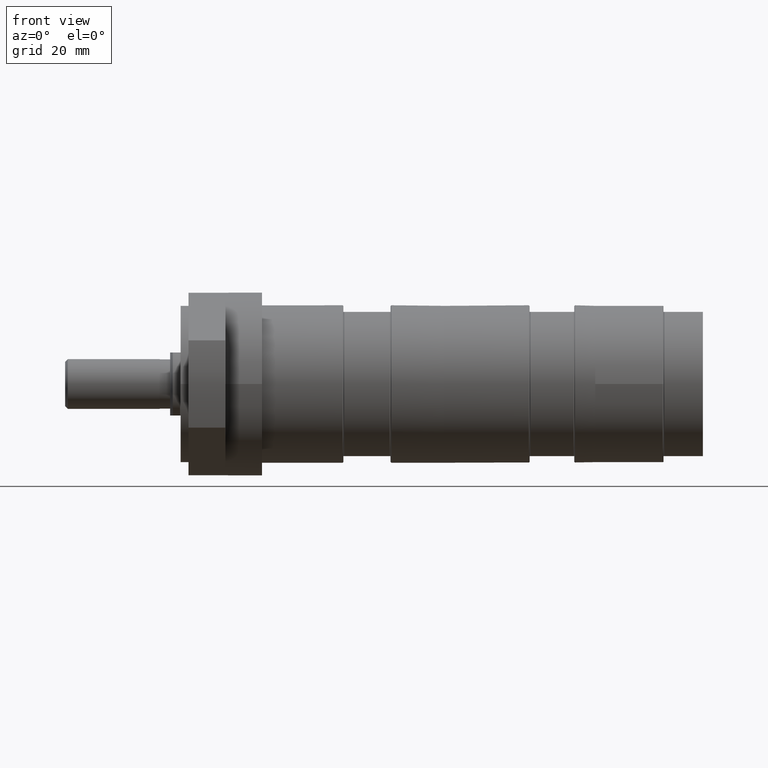
[diagram: clean part render]
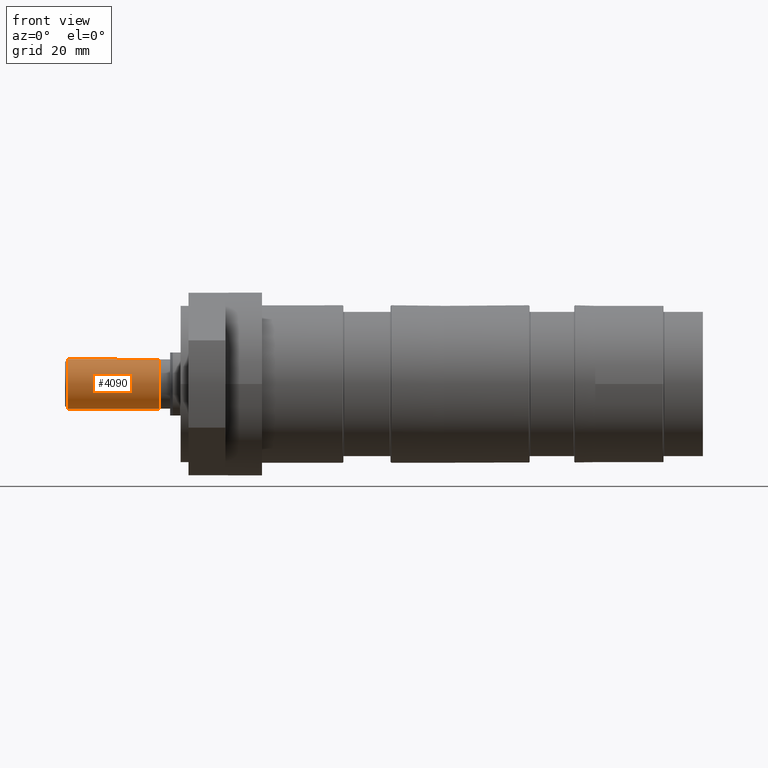
[diagram: same view with one face highlighted and labeled with its STEP entity id]
A machine part, front view. The second image highlights one B-rep face of the part: STEP entity #4090.
In plain terms, the highlighted cylindrical surface (bore or boss wall) has radius 9.5 mm, axis along (1, 0, -0).
Its self-contained STEP definition (entity closure, byte-faithful):
#141=B_SPLINE_CURVE_WITH_KNOTS('',3,(#6933,#6934,#6935,#6936,#6937,#6938,
#6939,#6940,#6941,#6942,#6943,#6944,#6945,#6946,#6947,#6948,#6949,#6950),
 .UNSPECIFIED.,.F.,.F.,(4,2,2,2,2,2,2,2,4),(-0.910821190995469,-0.796947513726753,
-0.683073836458036,-0.569242215977885,-0.455410595497735,-0.341578975017584,
-0.227747354537434,-0.113873677268717,0.),.UNSPECIFIED.);
#142=B_SPLINE_CURVE_WITH_KNOTS('',3,(#6953,#6954,#6955,#6956,#6957,#6958),
 .UNSPECIFIED.,.F.,.F.,(4,2,4),(0.,0.113873677268717,0.210988216819734),
 .UNSPECIFIED.);
#144=B_SPLINE_CURVE_WITH_KNOTS('',3,(#6978,#6979,#6980,#6981,#6982,#6983),
 .UNSPECIFIED.,.F.,.F.,(4,2,4),(0.699832974175734,0.796947513726752,0.910821190995469),
 .UNSPECIFIED.);
#639=LINE('',#6923,#948);
#642=LINE('',#6929,#951);
#650=LINE('',#7017,#959);
#948=VECTOR('',#5496,10.);
#951=VECTOR('',#5501,10.);
#959=VECTOR('',#5551,9.5);
#1015=CYLINDRICAL_SURFACE('',#4494,9.5);
#1214=FACE_OUTER_BOUND('',#1456,.T.);
#1456=EDGE_LOOP('',(#3634,#3635,#3636,#3637,#3638,#3639,#3640,#3641,#3642,
#3643,#3644));
#1648=CIRCLE('',#4482,9.5);
#1649=CIRCLE('',#4483,9.5);
#1650=CIRCLE('',#4485,9.5);
#1651=CIRCLE('',#4486,9.5);
#2013=VERTEX_POINT('',#6921);
#2014=VERTEX_POINT('',#6922);
#2015=VERTEX_POINT('',#6927);
#2016=VERTEX_POINT('',#6928);
#2017=VERTEX_POINT('',#6952);
#2020=VERTEX_POINT('',#6976);
#2024=VERTEX_POINT('',#6994);
#2025=VERTEX_POINT('',#6998);
#2026=VERTEX_POINT('',#6999);
#2552=EDGE_CURVE('',#2013,#2014,#639,.T.);
#2555=EDGE_CURVE('',#2015,#2016,#642,.T.);
#2558=EDGE_CURVE('',#2016,#2013,#141,.T.);
#2559=EDGE_CURVE('',#2014,#2017,#142,.T.);
#2563=EDGE_CURVE('',#2020,#2015,#144,.T.);
#2569=EDGE_CURVE('',#2017,#2024,#1648,.T.);
#2570=EDGE_CURVE('',#2024,#2020,#1649,.T.);
#2571=EDGE_CURVE('',#2025,#2026,#1650,.T.);
#2572=EDGE_CURVE('',#2026,#2025,#1651,.T.);
#2580=EDGE_CURVE('',#2024,#2026,#650,.T.);
#3634=ORIENTED_EDGE('',*,*,#2559,.F.);
#3635=ORIENTED_EDGE('',*,*,#2552,.F.);
#3636=ORIENTED_EDGE('',*,*,#2558,.F.);
#3637=ORIENTED_EDGE('',*,*,#2555,.F.);
#3638=ORIENTED_EDGE('',*,*,#2563,.F.);
#3639=ORIENTED_EDGE('',*,*,#2570,.F.);
#3640=ORIENTED_EDGE('',*,*,#2580,.T.);
#3641=ORIENTED_EDGE('',*,*,#2572,.T.);
#3642=ORIENTED_EDGE('',*,*,#2571,.T.);
#3643=ORIENTED_EDGE('',*,*,#2580,.F.);
#3644=ORIENTED_EDGE('',*,*,#2569,.F.);
#4090=ADVANCED_FACE('',(#1214),#1015,.T.);
#4482=AXIS2_PLACEMENT_3D('',#6995,#5523,#5524);
#4483=AXIS2_PLACEMENT_3D('',#6996,#5525,#5526);
#4485=AXIS2_PLACEMENT_3D('',#7000,#5529,#5530);
#4486=AXIS2_PLACEMENT_3D('',#7001,#5531,#5532);
#4494=AXIS2_PLACEMENT_3D('',#7016,#5549,#5550);
#5496=DIRECTION('',(1.,1.37370015238261E-15,-9.73181215116889E-17));
#5501=DIRECTION('',(-1.,-1.37370015238261E-15,9.73181215116889E-17));
#5523=DIRECTION('center_axis',(1.,1.37370015238261E-15,-9.73181215116889E-17));
#5524=DIRECTION('ref_axis',(2.80558814896423E-16,5.06079241094429E-31,1.));
#5525=DIRECTION('center_axis',(1.,1.37370015238261E-15,-9.73181215116889E-17));
#5526=DIRECTION('ref_axis',(2.80558814896423E-16,5.06079241094429E-31,1.));
#5529=DIRECTION('center_axis',(1.,1.37370015238261E-15,-9.73181215116889E-17));
#5530=DIRECTION('ref_axis',(2.80558814896423E-16,5.06079241094429E-31,1.));
#5531=DIRECTION('center_axis',(1.,1.37370015238261E-15,-9.73181215116889E-17));
#5532=DIRECTION('ref_axis',(2.80558814896423E-16,5.06079241094429E-31,1.));
#5549=DIRECTION('center_axis',(1.,1.37370015238261E-15,-9.73181215116889E-17));
#5550=DIRECTION('ref_axis',(2.80558814896423E-16,5.06079241094429E-31,1.));
#5551=DIRECTION('',(-1.,-1.37370015238261E-15,9.73181215116889E-17));
#6921=CARTESIAN_POINT('',(-193.999999999999,9.01387818865999,3.));
#6922=CARTESIAN_POINT('',(-167.999999999999,9.01387818866002,3.));
#6923=CARTESIAN_POINT('',(-183.499999999999,9.01387818866,3.));
#6927=CARTESIAN_POINT('',(-167.999999999999,9.01387818866002,-3.00000000000001));
#6928=CARTESIAN_POINT('',(-193.999999999999,9.01387818865998,-3.));
#6929=CARTESIAN_POINT('',(-183.499999999999,9.01387818866,-3.));
#6933=CARTESIAN_POINT('Ctrl Pts',(-193.999999999999,9.01387818865998,-3.));
#6934=CARTESIAN_POINT('Ctrl Pts',(-194.379578924229,9.01387818865998,-3.));
#6935=CARTESIAN_POINT('Ctrl Pts',(-194.782518919924,9.04036861157358,-2.92360660600911));
#6936=CARTESIAN_POINT('Ctrl Pts',(-195.520789968393,9.13393280099839,-2.6166793220814));
#6937=CARTESIAN_POINT('Ctrl Pts',(-195.85637101633,9.19943471480673,-2.38626967078921));
#6938=CARTESIAN_POINT('Ctrl Pts',(-196.386171817465,9.32080204630179,-1.85646886965407));
#6939=CARTESIAN_POINT('Ctrl Pts',(-196.616657042753,9.3848477654758,-1.5208484193716));
#6940=CARTESIAN_POINT('Ctrl Pts',(-196.923640376931,9.47502751244085,-0.782432827334677));
#6941=CARTESIAN_POINT('Ctrl Pts',(-196.999999999999,9.50000000000001,-0.379438734933836));
#6942=CARTESIAN_POINT('Ctrl Pts',(-196.999999999999,9.50000000000001,0.379438734933834));
#6943=CARTESIAN_POINT('Ctrl Pts',(-196.923640376931,9.47502751244085,0.782432827334675));
#6944=CARTESIAN_POINT('Ctrl Pts',(-196.616657042753,9.3848477654758,1.52084841937159));
#6945=CARTESIAN_POINT('Ctrl Pts',(-196.386171817465,9.32080204630179,1.85646886965407));
#6946=CARTESIAN_POINT('Ctrl Pts',(-195.85637101633,9.19943471480673,2.38626967078921));
#6947=CARTESIAN_POINT('Ctrl Pts',(-195.520789968393,9.1339328009984,2.61667932208135));
#6948=CARTESIAN_POINT('Ctrl Pts',(-194.782518919924,9.04036861157359,2.92360660600909));
#6949=CARTESIAN_POINT('Ctrl Pts',(-194.379578924229,9.01387818865998,3.));
#6950=CARTESIAN_POINT('Ctrl Pts',(-193.999999999999,9.01387818865999,3.));
#6952=CARTESIAN_POINT('',(-165.999999999999,9.23309265630974,2.23606797749979));
#6953=CARTESIAN_POINT('Ctrl Pts',(-168.,9.01387818866002,3.));
#6954=CARTESIAN_POINT('Ctrl Pts',(-167.62042107577,9.01387818866002,3.));
#6955=CARTESIAN_POINT('Ctrl Pts',(-167.217481080075,9.04036861157362,2.9236066060091));
#6956=CARTESIAN_POINT('Ctrl Pts',(-166.533536836847,9.12704773689221,2.63926503611131));
#6957=CARTESIAN_POINT('Ctrl Pts',(-166.242580680573,9.1805467348936,2.45303873421571));
#6958=CARTESIAN_POINT('Ctrl Pts',(-165.999999999999,9.23309265630975,2.23606797749976));
#6976=CARTESIAN_POINT('',(-165.999999999999,9.23309265630974,-2.2360679774998));
#6978=CARTESIAN_POINT('Ctrl Pts',(-166.,9.23309265630975,-2.23606797749977));
#6979=CARTESIAN_POINT('Ctrl Pts',(-166.242580680573,9.1805467348936,-2.45303873421573));
#6980=CARTESIAN_POINT('Ctrl Pts',(-166.533536836847,9.12704773689221,-2.63926503611131));
#6981=CARTESIAN_POINT('Ctrl Pts',(-167.217481080075,9.04036861157363,-2.92360660600909));
#6982=CARTESIAN_POINT('Ctrl Pts',(-167.62042107577,9.01387818866002,-3.));
#6983=CARTESIAN_POINT('Ctrl Pts',(-168.,9.01387818866002,-3.));
#6994=CARTESIAN_POINT('',(-165.999999999999,5.0616619944964E-14,-9.5));
#6995=CARTESIAN_POINT('Origin',(-165.999999999999,4.9453205485774E-14,-3.50345237442082E-15));
#6996=CARTESIAN_POINT('Origin',(-165.999999999999,4.9453205485774E-14,-3.50345237442082E-15));
#6998=CARTESIAN_POINT('',(-200.999999999999,1.37370015238268E-15,9.5));
#6999=CARTESIAN_POINT('',(-200.999999999999,2.53711461157265E-15,-9.49999999999999));
#7000=CARTESIAN_POINT('Origin',(-200.999999999999,1.37370015238267E-15,
-9.73181215117084E-17));
#7001=CARTESIAN_POINT('Origin',(-200.999999999999,1.37370015238267E-15,
-9.73181215117084E-17));
#7016=CARTESIAN_POINT('Origin',(-183.499999999999,2.54134528190783E-14,
-1.80038524796626E-15));
#7017=CARTESIAN_POINT('',(-183.499999999999,2.65768672782683E-14,-9.5));